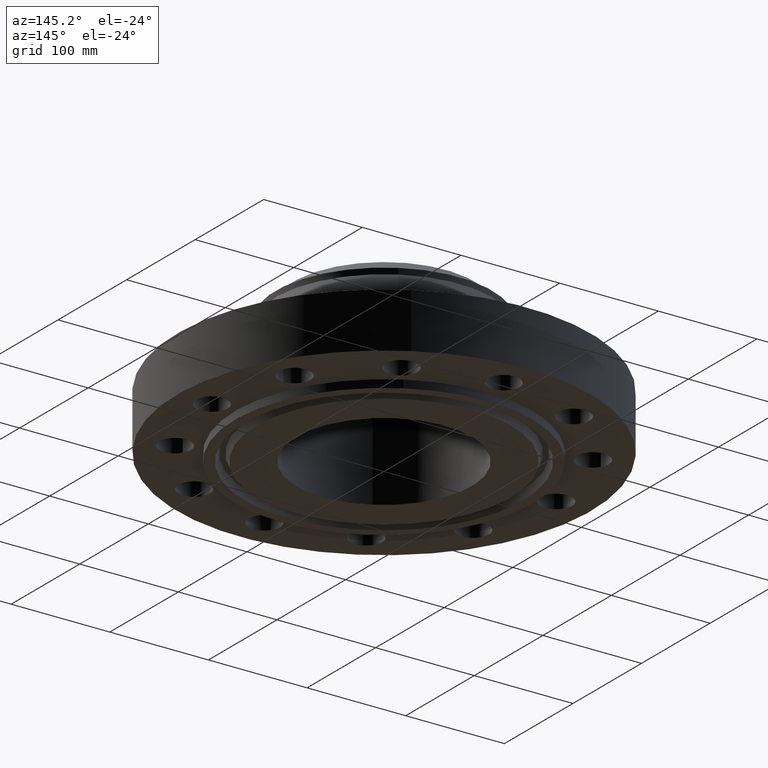
[diagram: clean part render]
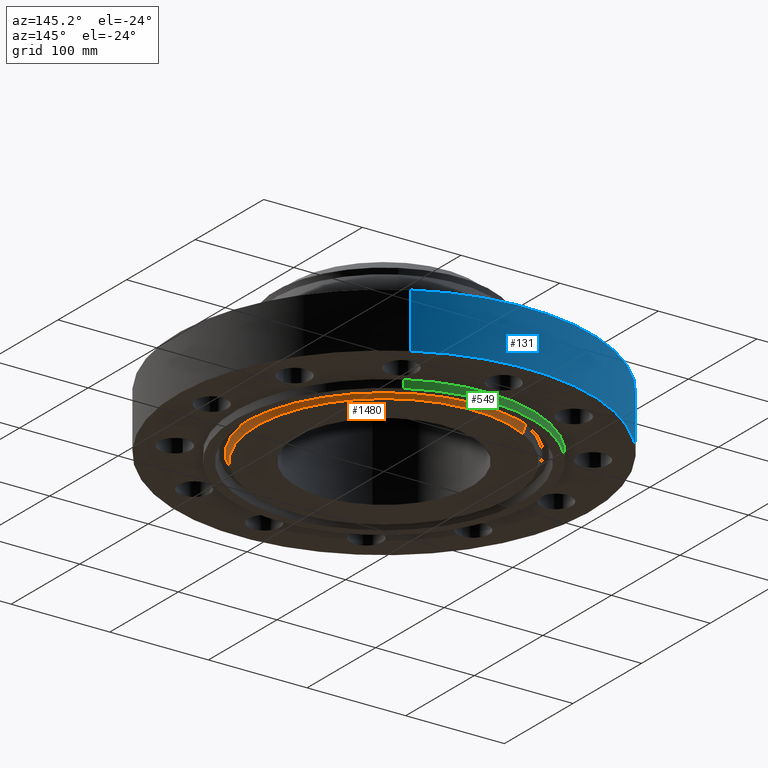
[diagram: same view with three faces highlighted in distinct colors, each labeled with its STEP entity id]
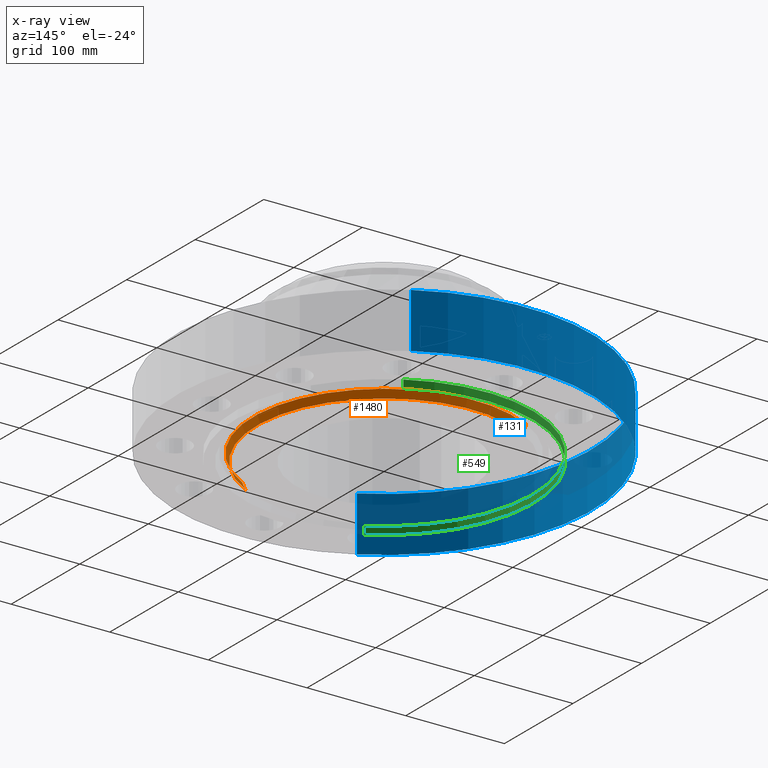
[diagram: x-ray of the same camera — body ghosted, the three highlighted faces saturated]
A machine part, auxiliary view with three faces highlighted in distinct colors.
The next image is the same camera in x-ray (body ghosted, the three faces saturated) — at least one of them is partly hidden behind the body in this view.
Their STEP definitions:

[orange] entity #1480 — the highlighted conical surface has half-angle 23 deg.
#1286=AXIS2_PLACEMENT_3D('Circle Axis2P3D',#1284,#1285,$) ;
#1430=AXIS2_PLACEMENT_3D('Circle Axis2P3D',#1428,#1429,$) ;
#1462=AXIS2_PLACEMENT_3D('Cone Axis2P3D',#1459,#1460,#1461) ;
#1284=CARTESIAN_POINT('Axis2P3D Location',(-5.59482469102E-016,0.,-0.313000000001)) ;
#1288=CARTESIAN_POINT('Vertex',(-2.43452288504,4.4563642493,-0.313000000001)) ;
#1290=CARTESIAN_POINT('Vertex',(2.43452288504,-4.4563642493,-0.313000000001)) ;
#1425=CARTESIAN_POINT('Vertex',(2.49437600864,-4.56592465714,-0.0188873350169)) ;
#1428=CARTESIAN_POINT('Axis2P3D Location',(0.,0.,-0.0188873350169)) ;
#1432=CARTESIAN_POINT('Vertex',(-2.49437600864,4.56592465714,-0.0188873350169)) ;
#1459=CARTESIAN_POINT('Axis2P3D Location',(0.,0.,-0.373000000001)) ;
#1464=CARTESIAN_POINT('Line Origine',(-2.46444944684,4.51114445322,-0.165943667509)) ;
#1469=CARTESIAN_POINT('Line Origine',(2.46444944684,-4.51114445322,-0.165943667509)) ;
#1285=DIRECTION('Axis2P3D Direction',(0.,0.,-0.0393700787402)) ;
#1429=DIRECTION('Axis2P3D Direction',(0.,0.,0.0393700787402)) ;
#1460=DIRECTION('Axis2P3D Direction',(0.,0.,0.0393700787402)) ;
#1461=DIRECTION('Axis2P3D XDirection',(-0.0188750212049,0.0345504945626,0.)) ;
#1465=DIRECTION('Vector Direction',(-0.00737505833565,0.0134999537303,0.0362403485611)) ;
#1470=DIRECTION('Vector Direction',(0.00737505833565,-0.0134999537303,0.0362403485611)) ;
#1466=VECTOR('Line Direction',#1465,0.0393700787402) ;
#1471=VECTOR('Line Direction',#1470,0.0393700787402) ;
#1475=ORIENTED_EDGE('',*,*,#1468,.F.) ;
#1476=ORIENTED_EDGE('',*,*,#1434,.F.) ;
#1477=ORIENTED_EDGE('',*,*,#1473,.T.) ;
#1478=ORIENTED_EDGE('',*,*,#1292,.F.) ;
#1480=ADVANCED_FACE('PartBody',(#1479),#1463,.T.) ;
#1287=CIRCLE('generated circle',#1286,5.07800000002) ;
#1431=CIRCLE('generated circle',#1430,5.20284341943) ;
#1463=CONICAL_SURFACE('Cone',#1462,5.05253151105,0.401425727959) ;
#1292=EDGE_CURVE('',#1289,#1291,#1287,.T.) ;
#1434=EDGE_CURVE('',#1426,#1433,#1431,.T.) ;
#1468=EDGE_CURVE('',#1433,#1289,#1467,.F.) ;
#1473=EDGE_CURVE('',#1426,#1291,#1472,.F.) ;
#1474=EDGE_LOOP('',(#1475,#1476,#1477,#1478)) ;
#1479=FACE_OUTER_BOUND('',#1474,.T.) ;
#1467=LINE('Line',#1464,#1466) ;
#1472=LINE('Line',#1469,#1471) ;
#1289=VERTEX_POINT('',#1288) ;
#1291=VERTEX_POINT('',#1290) ;
#1426=VERTEX_POINT('',#1425) ;
#1433=VERTEX_POINT('',#1432) ;

[blue] entity #131 — the highlighted cylindrical surface (partial cylindrical patch) has radius 209.55 mm, axis along (0, 0, -1).
#95=AXIS2_PLACEMENT_3D('Cylinder Axis2P3D',#92,#93,#94) ;
#99=AXIS2_PLACEMENT_3D('Circle Axis2P3D',#97,#98,$) ;
#115=AXIS2_PLACEMENT_3D('Circle Axis2P3D',#113,#114,$) ;
#92=CARTESIAN_POINT('Axis2P3D Location',(0.,0.,2.46850000001)) ;
#97=CARTESIAN_POINT('Axis2P3D Location',(0.,0.,8.39223703654E-016)) ;
#101=CARTESIAN_POINT('Vertex',(-3.9552606935,-7.24005613562,8.39223703654E-016)) ;
#103=CARTESIAN_POINT('Vertex',(3.9552606935,7.24005613562,8.39223703654E-016)) ;
#106=CARTESIAN_POINT('Line Origine',(-3.9552606935,-7.24005613562,1.095)) ;
#110=CARTESIAN_POINT('Vertex',(-3.9552606935,-7.24005613562,2.19000000001)) ;
#113=CARTESIAN_POINT('Axis2P3D Location',(0.,0.,2.19000000001)) ;
#117=CARTESIAN_POINT('Vertex',(3.9552606935,7.24005613562,2.19000000001)) ;
#120=CARTESIAN_POINT('Line Origine',(3.9552606935,7.24005613562,1.095)) ;
#93=DIRECTION('Axis2P3D Direction',(0.,0.,-0.0393700787402)) ;
#94=DIRECTION('Axis2P3D XDirection',(0.0188750212049,0.0345504945626,0.)) ;
#98=DIRECTION('Axis2P3D Direction',(0.,0.,-0.0393700787402)) ;
#107=DIRECTION('Vector Direction',(0.,0.,-0.0393700787402)) ;
#114=DIRECTION('Axis2P3D Direction',(0.,0.,-0.0393700787402)) ;
#121=DIRECTION('Vector Direction',(0.,0.,-0.0393700787402)) ;
#108=VECTOR('Line Direction',#107,0.0393700787402) ;
#122=VECTOR('Line Direction',#121,0.0393700787402) ;
#126=ORIENTED_EDGE('',*,*,#105,.F.) ;
#127=ORIENTED_EDGE('',*,*,#112,.T.) ;
#128=ORIENTED_EDGE('',*,*,#119,.T.) ;
#129=ORIENTED_EDGE('',*,*,#124,.F.) ;
#131=ADVANCED_FACE('PartBody',(#130),#96,.T.) ;
#100=CIRCLE('generated circle',#99,8.25000000003) ;
#116=CIRCLE('generated circle',#115,8.25000000003) ;
#96=CYLINDRICAL_SURFACE('generated cylinder',#95,8.25000000003) ;
#105=EDGE_CURVE('',#102,#104,#100,.T.) ;
#112=EDGE_CURVE('',#102,#111,#109,.F.) ;
#119=EDGE_CURVE('',#111,#118,#116,.T.) ;
#124=EDGE_CURVE('',#104,#118,#123,.F.) ;
#125=EDGE_LOOP('',(#126,#127,#128,#129)) ;
#130=FACE_OUTER_BOUND('',#125,.T.) ;
#109=LINE('Line',#106,#108) ;
#123=LINE('Line',#120,#122) ;
#102=VERTEX_POINT('',#101) ;
#104=VERTEX_POINT('',#103) ;
#111=VERTEX_POINT('',#110) ;
#118=VERTEX_POINT('',#117) ;

[green] entity #549 — the highlighted cylindrical surface (partial cylindrical patch) has radius 150.812 mm, axis along (0, 0, -1).
#513=AXIS2_PLACEMENT_3D('Cylinder Axis2P3D',#510,#511,#512) ;
#517=AXIS2_PLACEMENT_3D('Circle Axis2P3D',#515,#516,$) ;
#533=AXIS2_PLACEMENT_3D('Circle Axis2P3D',#531,#532,$) ;
#510=CARTESIAN_POINT('Axis2P3D Location',(0.,0.,2.46850000001)) ;
#515=CARTESIAN_POINT('Axis2P3D Location',(0.,0.,-0.313000000001)) ;
#519=CARTESIAN_POINT('Vertex',(-2.84658913547,-5.21064646124,-0.313000000001)) ;
#521=CARTESIAN_POINT('Vertex',(2.84658913547,5.21064646124,-0.313000000001)) ;
#524=CARTESIAN_POINT('Line Origine',(-2.84658913547,-5.21064646124,-0.156500000001)) ;
#528=CARTESIAN_POINT('Vertex',(-2.84658913547,-5.21064646124,5.59482469102E-016)) ;
#531=CARTESIAN_POINT('Axis2P3D Location',(0.,0.,5.59482469102E-016)) ;
#535=CARTESIAN_POINT('Vertex',(2.84658913547,5.21064646124,5.59482469102E-016)) ;
#538=CARTESIAN_POINT('Line Origine',(2.84658913547,5.21064646124,-0.156500000001)) ;
#511=DIRECTION('Axis2P3D Direction',(0.,0.,-0.0393700787402)) ;
#512=DIRECTION('Axis2P3D XDirection',(0.0188750212049,0.0345504945626,0.)) ;
#516=DIRECTION('Axis2P3D Direction',(0.,0.,-0.0393700787402)) ;
#525=DIRECTION('Vector Direction',(0.,0.,-0.0393700787402)) ;
#532=DIRECTION('Axis2P3D Direction',(0.,0.,-0.0393700787402)) ;
#539=DIRECTION('Vector Direction',(0.,0.,-0.0393700787402)) ;
#526=VECTOR('Line Direction',#525,0.0393700787402) ;
#540=VECTOR('Line Direction',#539,0.0393700787402) ;
#544=ORIENTED_EDGE('',*,*,#523,.F.) ;
#545=ORIENTED_EDGE('',*,*,#530,.T.) ;
#546=ORIENTED_EDGE('',*,*,#537,.T.) ;
#547=ORIENTED_EDGE('',*,*,#542,.F.) ;
#549=ADVANCED_FACE('PartBody',(#548),#514,.T.) ;
#518=CIRCLE('generated circle',#517,5.93750000002) ;
#534=CIRCLE('generated circle',#533,5.93750000002) ;
#514=CYLINDRICAL_SURFACE('generated cylinder',#513,5.93750000002) ;
#523=EDGE_CURVE('',#520,#522,#518,.T.) ;
#530=EDGE_CURVE('',#520,#529,#527,.F.) ;
#537=EDGE_CURVE('',#529,#536,#534,.T.) ;
#542=EDGE_CURVE('',#522,#536,#541,.F.) ;
#543=EDGE_LOOP('',(#544,#545,#546,#547)) ;
#548=FACE_OUTER_BOUND('',#543,.T.) ;
#527=LINE('Line',#524,#526) ;
#541=LINE('Line',#538,#540) ;
#520=VERTEX_POINT('',#519) ;
#522=VERTEX_POINT('',#521) ;
#529=VERTEX_POINT('',#528) ;
#536=VERTEX_POINT('',#535) ;